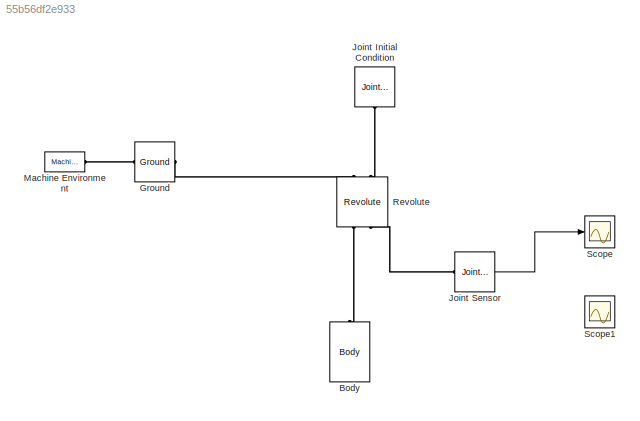
MODEL slx_55b56df2e933
KIND model
CONFIG AbsTol = auto
CONFIG FixedStep = auto
CONFIG MaxStep = 0.005
CONFIG MinStep = auto
CONFIG RelTol = 1e-3
CONFIG SampleTimeConstraint = Unconstrained
CONFIG Solver = VariableStepAuto
CONFIG SolverMode = Auto
CONFIG SolverName = VariableStepAuto
CONFIG StartTime = 0.0
CONFIG StopTime = 10.0
BLOCK [Reference] Body  REF=mblibv1/Bodies/Body
  Ports = [0, 0, 0, 0, 0, 1]
  SourceBlock = mblibv1/Bodies/Body
  SourceType = Body
BLOCK [Reference] Ground  REF=mblibv1/Bodies/Ground
  Ports = [0, 0, 0, 0, 0, 1, 1]
  SourceBlock = mblibv1/Bodies/Ground
  SourceType = Ground
  UserDataPersistent = on
BLOCK [Reference] Joint Initial Condition  REF=mblibv1/Sensors & 
Actuators/Joint Initial Condition
  Ports = [0, 0, 0, 0, 0, 0, 1]
  SourceBlock = mblibv1/Sensors & \nActuators/Joint Initial Condition
  SourceType = Joint Initial Condition
BLOCK [Reference] Joint Sensor  REF=mblibv1/Sensors & 
Actuators/Joint Sensor
  Ports = [0, 1, 0, 0, 0, 1]
  SourceBlock = mblibv1/Sensors & \nActuators/Joint Sensor
  SourceType = Joint Sensor
BLOCK [Reference] Machine Environment  REF=mblibv1/Bodies/Machine
Environment
  Ports = [0, 0, 0, 0, 0, 0, 1]
  SourceBlock = mblibv1/Bodies/Machine\nEnvironment
  SourceType = Machine Environment
BLOCK [Reference] Revolute  REF=mblibv1/Joints/Revolute
  Ports = [0, 0, 0, 0, 0, 2, 2]
  SourceBlock = mblibv1/Joints/Revolute
  SourceType = Revolute
BLOCK [Scope] Scope
  Ports = [1]
  ScopeSpecificationString = Simulink.scopes.TimeScopeBlockCfg('CurrentConfiguration', extmgr.ConfigurationSet(extmgr.Configuration('Core','General UI',true),extmgr.Configuration('Core','Source UI',true),extmgr.Configuration('Sources','WiredSimulink',true),extmgr.Configuration('Visuals','Time Domain',true,'SerializedDisplays',{struct('MinYLimReal','-121.40067','MaxYLimReal','121.40058','YLabelReal','','MinYLimMag',' 0.00000',...<+1394ch>
BLOCK [Scope] Scope1
  Ports = [1]
  ScopeSpecificationString = Simulink.scopes.TimeScopeBlockCfg('CurrentConfiguration', extmgr.ConfigurationSet(extmgr.Configuration('Core','General UI',true),extmgr.Configuration('Core','Source UI',true),extmgr.Configuration('Sources','WiredSimulink',true,'DataLoggingVariableName','ScopeData1'),extmgr.Configuration('Visuals','Time Domain',true,'SerializedDisplays',{struct('MinYLimReal','-1.00000','MaxYLimReal','1.00000','YLab...<+1397ch>
LINE Joint Sensor:1 -> Scope:1
PLINE Body:LConn1 -- Revolute:RConn1
PLINE Ground:LConn1 -- Machine Environment:RConn1
PLINE Ground:RConn1 -- Revolute:LConn1
PLINE Joint Initial Condition:RConn1 -- Revolute:LConn2
PLINE Joint Sensor:LConn1 -- Revolute:RConn2
